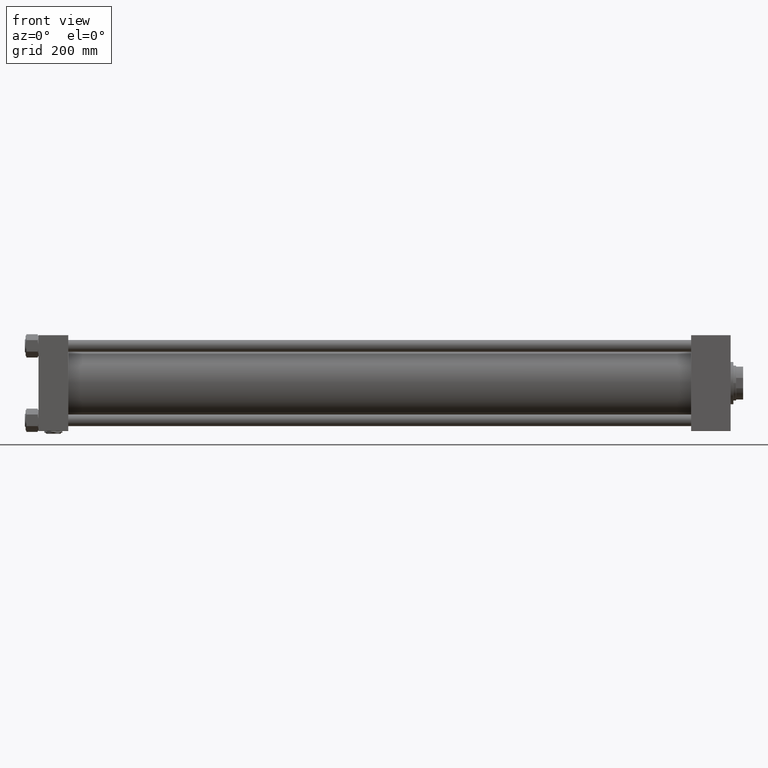
[diagram: clean part render]
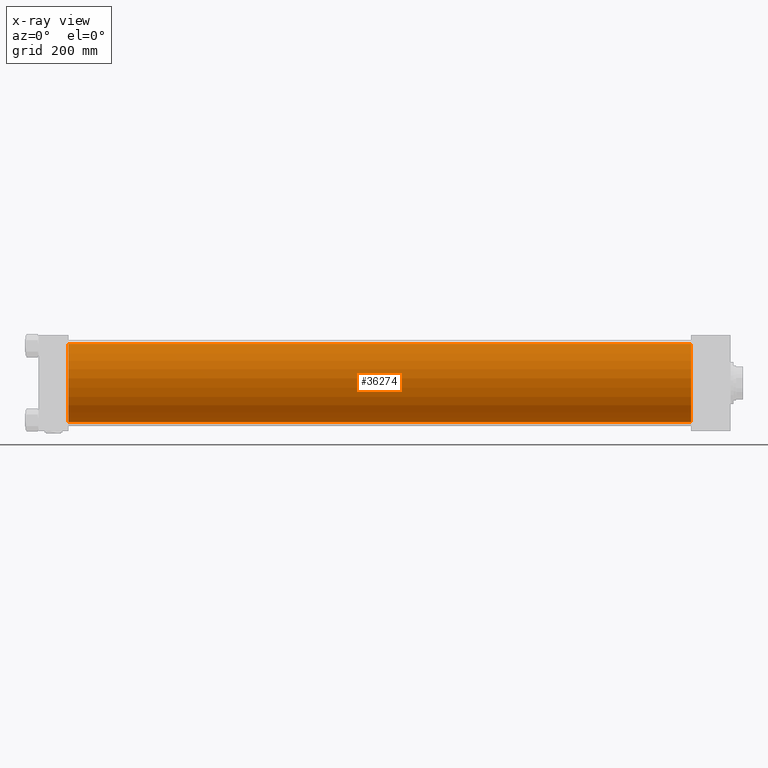
[diagram: x-ray — body ghosted, one internal face saturated and labeled with its STEP entity id]
A machine part, front view, then the same camera in x-ray: the body is ghosted and one INTERNAL B-rep face — a face not visible from any outside direction — is saturated and labeled: STEP entity #36274.
In plain terms, the highlighted cylindrical surface (partial cylindrical patch) has radius 100 mm, axis along (-1, -0, -0).
Its self-contained STEP definition (entity closure, byte-faithful):
#545 = CIRCLE ( 'NONE', #15827, 100.0000000000000000 ) ;
#790 = DIRECTION ( 'NONE',  ( 0.000000000000000000, 0.000000000000000000, 1.000000000000000000 ) ) ;
#3410 = VECTOR ( 'NONE', #36999, 1000.000000000000000 ) ;
#4740 = DIRECTION ( 'NONE',  ( -1.000000000000000000, -0.000000000000000000, -0.000000000000000000 ) ) ;
#4793 = CYLINDRICAL_SURFACE ( 'NONE', #23805, 100.0000000000000000 ) ;
#5990 = CIRCLE ( 'NONE', #11891, 100.0000000000000000 ) ;
#6325 = ORIENTED_EDGE ( 'NONE', *, *, #40323, .F. ) ;
#6437 = ORIENTED_EDGE ( 'NONE', *, *, #36989, .T. ) ;
#7550 = DIRECTION ( 'NONE',  ( 1.000000000000000000, 0.000000000000000000, 0.000000000000000000 ) ) ;
#11241 = ORIENTED_EDGE ( 'NONE', *, *, #24624, .F. ) ;
#11891 = AXIS2_PLACEMENT_3D ( 'NONE', #20744, #7550, #27744 ) ;
#12819 = CARTESIAN_POINT ( 'NONE',  ( 1668.000000000000227, 9.644382777508321529E-15, -100.0000000000000000 ) ) ;
#14499 = VERTEX_POINT ( 'NONE', #19250 ) ;
#15703 = CARTESIAN_POINT ( 'NONE',  ( 1668.000000000000227, 9.644382777508321529E-15, -100.0000000000000000 ) ) ;
#15827 = AXIS2_PLACEMENT_3D ( 'NONE', #43357, #23173, #50796 ) ;
#18083 = VERTEX_POINT ( 'NONE', #41576 ) ;
#19250 = CARTESIAN_POINT ( 'NONE',  ( 76.00000000000000000, -2.602085213965210642E-15, 100.0000000000000000 ) ) ;
#20744 = CARTESIAN_POINT ( 'NONE',  ( 1668.000000000000227, -2.602085213965210642E-15, 0.000000000000000000 ) ) ;
#20994 = CARTESIAN_POINT ( 'NONE',  ( 1668.000000000000227, -2.602085213965210642E-15, 0.000000000000000000 ) ) ;
#23145 = CARTESIAN_POINT ( 'NONE',  ( 1668.000000000000227, -2.602085213965210642E-15, 100.0000000000000000 ) ) ;
#23173 = DIRECTION ( 'NONE',  ( 1.000000000000000000, 0.000000000000000000, 0.000000000000000000 ) ) ;
#23805 = AXIS2_PLACEMENT_3D ( 'NONE', #20994, #25241, #790 ) ;
#23885 = LINE ( 'NONE', #40871, #45948 ) ;
#24624 = EDGE_CURVE ( 'NONE', #14499, #18083, #545, .T. ) ;
#25241 = DIRECTION ( 'NONE',  ( -1.000000000000000000, -0.000000000000000000, -0.000000000000000000 ) ) ;
#27744 = DIRECTION ( 'NONE',  ( 0.000000000000000000, 0.000000000000000000, -1.000000000000000000 ) ) ;
#29022 = VERTEX_POINT ( 'NONE', #23145 ) ;
#32330 = VERTEX_POINT ( 'NONE', #15703 ) ;
#35884 = EDGE_CURVE ( 'NONE', #32330, #18083, #48435, .T. ) ;
#36274 = ADVANCED_FACE ( 'NONE', ( #41189 ), #4793, .F. ) ;
#36989 = EDGE_CURVE ( 'NONE', #29022, #32330, #5990, .T. ) ;
#36999 = DIRECTION ( 'NONE',  ( -1.000000000000000000, -0.000000000000000000, -0.000000000000000000 ) ) ;
#40323 = EDGE_CURVE ( 'NONE', #29022, #14499, #23885, .T. ) ;
#40871 = CARTESIAN_POINT ( 'NONE',  ( 1668.000000000000227, -2.602085213965210642E-15, 100.0000000000000000 ) ) ;
#41189 = FACE_OUTER_BOUND ( 'NONE', #48004, .T. ) ;
#41576 = CARTESIAN_POINT ( 'NONE',  ( 76.00000000000000000, 9.644382777508321529E-15, -100.0000000000000000 ) ) ;
#43357 = CARTESIAN_POINT ( 'NONE',  ( 76.00000000000000000, -2.602085213965210642E-15, 0.000000000000000000 ) ) ;
#44385 = ORIENTED_EDGE ( 'NONE', *, *, #35884, .T. ) ;
#45948 = VECTOR ( 'NONE', #4740, 1000.000000000000000 ) ;
#48004 = EDGE_LOOP ( 'NONE', ( #6437, #44385, #11241, #6325 ) ) ;
#48435 = LINE ( 'NONE', #12819, #3410 ) ;
#50796 = DIRECTION ( 'NONE',  ( 0.000000000000000000, 0.000000000000000000, -1.000000000000000000 ) ) ;